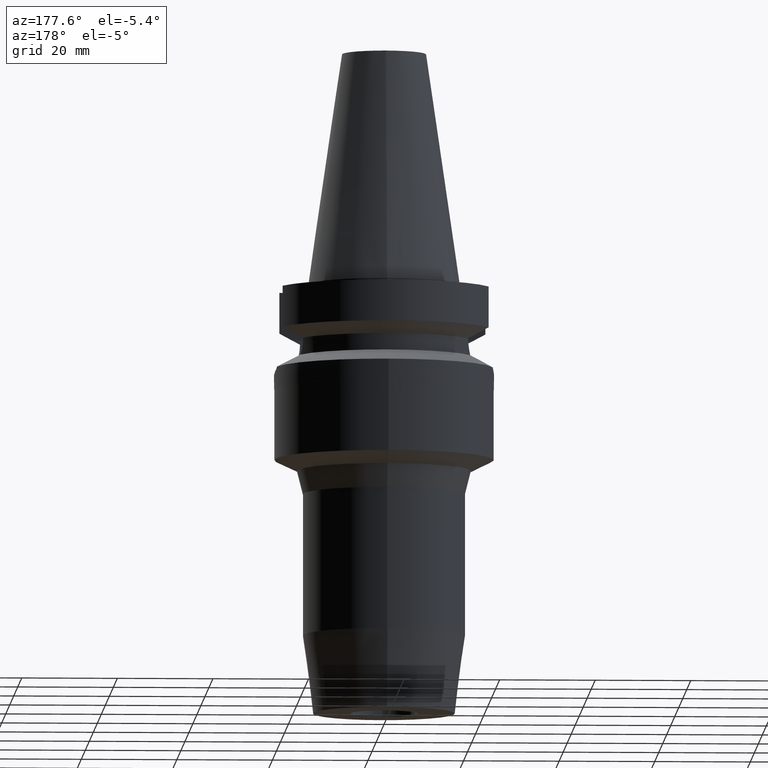
[diagram: clean part render]
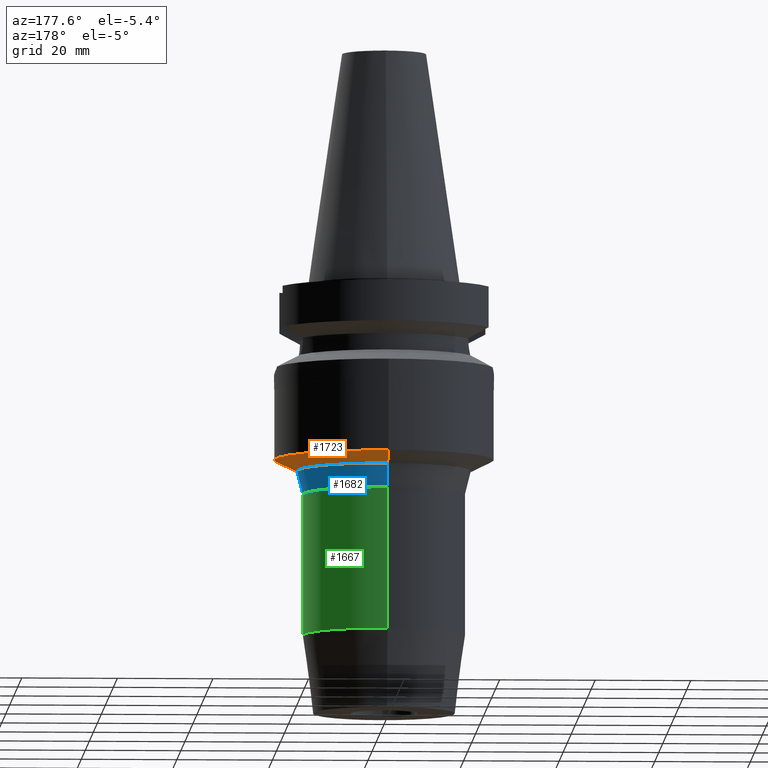
[diagram: same view with three faces highlighted in distinct colors, each labeled with its STEP entity id]
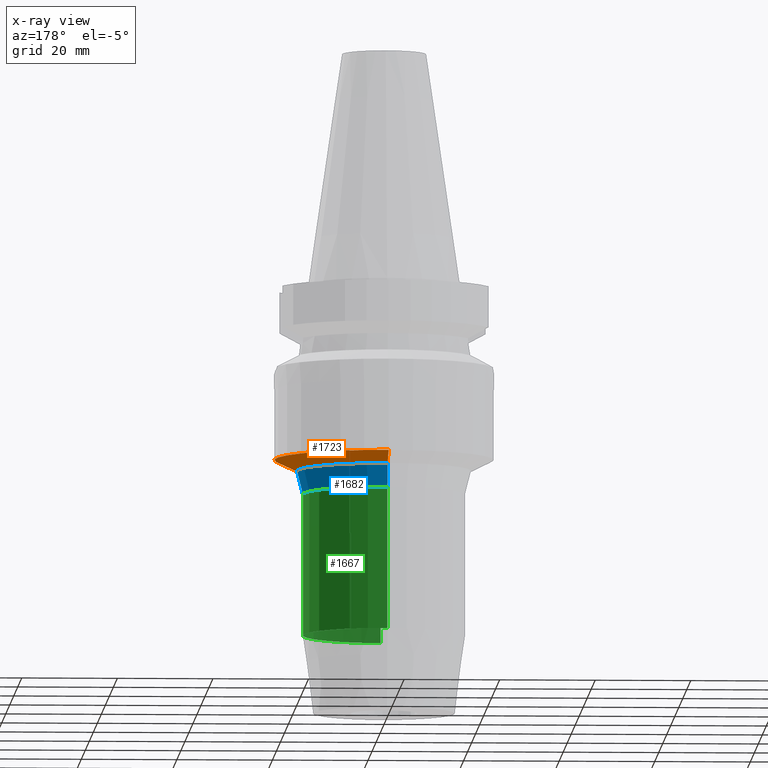
[diagram: x-ray of the same camera — body ghosted, the three highlighted faces saturated]
A machine part, auxiliary view with three faces highlighted in distinct colors.
The next image is the same camera in x-ray (body ghosted, the three faces saturated) — at least one of them is partly hidden behind the body in this view.
Their STEP definitions:

[orange] entity #1723 — the highlighted conical surface has half-angle 64.001 deg.
#445=CARTESIAN_POINT('',(0.E0,0.E0,-3.909757260797E1));
#446=DIRECTION('',(0.E0,0.E0,1.E0));
#447=DIRECTION('',(0.E0,-1.E0,0.E0));
#448=AXIS2_PLACEMENT_3D('',#445,#446,#447);
#476=DIRECTION('',(0.E0,8.988016971821E-1,-4.383554598070E-1));
#477=VECTOR('',#476,5.241345936434E0);
#478=CARTESIAN_POINT('',(0.E0,-2.295E1,-3.68E1));
#479=LINE('',#478,#477);
#491=DIRECTION('',(0.E0,-8.988016971821E-1,-4.383554598070E-1));
#492=VECTOR('',#491,5.241345936434E0);
#493=CARTESIAN_POINT('',(0.E0,2.295E1,-3.68E1));
#494=LINE('',#493,#492);
#498=CARTESIAN_POINT('',(0.E0,0.E0,-3.68E1));
#499=DIRECTION('',(0.E0,0.E0,1.E0));
#500=DIRECTION('',(0.E0,-1.E0,0.E0));
#501=AXIS2_PLACEMENT_3D('',#498,#499,#500);
#1182=CARTESIAN_POINT('',(0.E0,1.823906937682E1,-3.909757260797E1));
#1183=VERTEX_POINT('',#1182);
#1184=CARTESIAN_POINT('',(0.E0,-1.823906937682E1,-3.909757260797E1));
#1185=VERTEX_POINT('',#1184);
#1186=CARTESIAN_POINT('',(0.E0,2.295E1,-3.68E1));
#1187=VERTEX_POINT('',#1186);
#1188=CARTESIAN_POINT('',(0.E0,-2.295E1,-3.68E1));
#1189=VERTEX_POINT('',#1188);
#1711=CARTESIAN_POINT('',(0.E0,0.E0,-3.794878630399E1));
#1712=DIRECTION('',(0.E0,0.E0,1.E0));
#1713=DIRECTION('',(0.E0,1.E0,0.E0));
#1714=AXIS2_PLACEMENT_3D('',#1711,#1712,#1713);
#1715=CONICAL_SURFACE('',#1714,2.059453468841E1,6.4001E1);
#1716=ORIENTED_EDGE('',*,*,#1701,.T.);
#1717=ORIENTED_EDGE('',*,*,#1678,.F.);
#1718=ORIENTED_EDGE('',*,*,#1705,.F.);
#1720=ORIENTED_EDGE('',*,*,#1719,.T.);
#1721=EDGE_LOOP('',(#1716,#1717,#1718,#1720));
#1722=FACE_OUTER_BOUND('',#1721,.F.);
#449=CIRCLE('',#448,1.823906937682E1);
#502=CIRCLE('',#501,2.295E1);
#1678=EDGE_CURVE('',#1185,#1183,#449,.T.);
#1701=EDGE_CURVE('',#1187,#1183,#494,.T.);
#1705=EDGE_CURVE('',#1189,#1185,#479,.T.);
#1719=EDGE_CURVE('',#1189,#1187,#502,.T.);
#1723=ADVANCED_FACE('',(#1722),#1715,.T.);

[blue] entity #1682 — the highlighted conical surface has half-angle 14.226 deg.
#430=DIRECTION('',(0.E0,-2.457472809519E-1,-9.693339331235E-1));
#431=VECTOR('',#430,5.042047147031E0);
#432=CARTESIAN_POINT('',(0.E0,1.823906937682E1,-3.909757260797E1));
#433=LINE('',#432,#431);
#437=CARTESIAN_POINT('',(0.E0,0.E0,-4.3985E1));
#438=DIRECTION('',(0.E0,0.E0,-1.E0));
#439=DIRECTION('',(0.E0,1.E0,0.E0));
#440=AXIS2_PLACEMENT_3D('',#437,#438,#439);
#445=CARTESIAN_POINT('',(0.E0,0.E0,-3.909757260797E1));
#446=DIRECTION('',(0.E0,0.E0,1.E0));
#447=DIRECTION('',(0.E0,-1.E0,0.E0));
#448=AXIS2_PLACEMENT_3D('',#445,#446,#447);
#453=DIRECTION('',(0.E0,2.457472809519E-1,-9.693339331235E-1));
#454=VECTOR('',#453,5.042047147031E0);
#455=CARTESIAN_POINT('',(0.E0,-1.823906937682E1,-3.909757260797E1));
#456=LINE('',#455,#454);
#1178=CARTESIAN_POINT('',(0.E0,1.7E1,-4.3985E1));
#1179=VERTEX_POINT('',#1178);
#1180=CARTESIAN_POINT('',(0.E0,-1.7E1,-4.3985E1));
#1181=VERTEX_POINT('',#1180);
#1182=CARTESIAN_POINT('',(0.E0,1.823906937682E1,-3.909757260797E1));
#1183=VERTEX_POINT('',#1182);
#1184=CARTESIAN_POINT('',(0.E0,-1.823906937682E1,-3.909757260797E1));
#1185=VERTEX_POINT('',#1184);
#1668=CARTESIAN_POINT('',(0.E0,0.E0,-4.154128630399E1));
#1669=DIRECTION('',(0.E0,0.E0,1.E0));
#1670=DIRECTION('',(0.E0,1.E0,0.E0));
#1671=AXIS2_PLACEMENT_3D('',#1668,#1669,#1670);
#1672=CONICAL_SURFACE('',#1671,1.761953468841E1,1.4226E1);
#1674=ORIENTED_EDGE('',*,*,#1673,.T.);
#1675=ORIENTED_EDGE('',*,*,#1663,.T.);
#1677=ORIENTED_EDGE('',*,*,#1676,.F.);
#1679=ORIENTED_EDGE('',*,*,#1678,.T.);
#1680=EDGE_LOOP('',(#1674,#1675,#1677,#1679));
#1681=FACE_OUTER_BOUND('',#1680,.F.);
#441=CIRCLE('',#440,1.7E1);
#449=CIRCLE('',#448,1.823906937682E1);
#1663=EDGE_CURVE('',#1179,#1181,#441,.T.);
#1673=EDGE_CURVE('',#1183,#1179,#433,.T.);
#1676=EDGE_CURVE('',#1185,#1181,#456,.T.);
#1678=EDGE_CURVE('',#1185,#1183,#449,.T.);
#1682=ADVANCED_FACE('',(#1681),#1672,.T.);

[green] entity #1667 — the highlighted cylindrical surface (partial cylindrical patch) has radius 17 mm, axis along (0, 0, -1).
#393=CARTESIAN_POINT('',(0.E0,0.E0,-7.363494776413E1));
#394=DIRECTION('',(0.E0,0.E0,1.E0));
#395=DIRECTION('',(0.E0,-1.E0,0.E0));
#396=AXIS2_PLACEMENT_3D('',#393,#394,#395);
#416=DIRECTION('',(0.E0,4.685037084927E-14,-1.E0));
#417=VECTOR('',#416,2.964994776413E1);
#418=CARTESIAN_POINT('',(0.E0,-1.7E1,-4.3985E1));
#419=LINE('',#418,#417);
#423=DIRECTION('',(0.E0,-4.685037084927E-14,-1.E0));
#424=VECTOR('',#423,2.964994776413E1);
#425=CARTESIAN_POINT('',(0.E0,1.7E1,-4.3985E1));
#426=LINE('',#425,#424);
#437=CARTESIAN_POINT('',(0.E0,0.E0,-4.3985E1));
#438=DIRECTION('',(0.E0,0.E0,-1.E0));
#439=DIRECTION('',(0.E0,1.E0,0.E0));
#440=AXIS2_PLACEMENT_3D('',#437,#438,#439);
#1174=CARTESIAN_POINT('',(0.E0,1.7E1,-7.363494776413E1));
#1175=VERTEX_POINT('',#1174);
#1176=CARTESIAN_POINT('',(0.E0,-1.7E1,-7.363494776413E1));
#1177=VERTEX_POINT('',#1176);
#1178=CARTESIAN_POINT('',(0.E0,1.7E1,-4.3985E1));
#1179=VERTEX_POINT('',#1178);
#1180=CARTESIAN_POINT('',(0.E0,-1.7E1,-4.3985E1));
#1181=VERTEX_POINT('',#1180);
#1655=CARTESIAN_POINT('',(0.E0,1.902121408436E-14,5.532E1));
#1656=DIRECTION('',(0.E0,0.E0,-1.E0));
#1657=DIRECTION('',(0.E0,-1.E0,0.E0));
#1658=AXIS2_PLACEMENT_3D('',#1655,#1656,#1657);
#1659=CYLINDRICAL_SURFACE('',#1658,1.7E1);
#1660=ORIENTED_EDGE('',*,*,#1645,.T.);
#1661=ORIENTED_EDGE('',*,*,#1622,.F.);
#1662=ORIENTED_EDGE('',*,*,#1649,.F.);
#1664=ORIENTED_EDGE('',*,*,#1663,.F.);
#1665=EDGE_LOOP('',(#1660,#1661,#1662,#1664));
#1666=FACE_OUTER_BOUND('',#1665,.F.);
#397=CIRCLE('',#396,1.7E1);
#441=CIRCLE('',#440,1.7E1);
#1622=EDGE_CURVE('',#1177,#1175,#397,.T.);
#1645=EDGE_CURVE('',#1179,#1175,#426,.T.);
#1649=EDGE_CURVE('',#1181,#1177,#419,.T.);
#1663=EDGE_CURVE('',#1179,#1181,#441,.T.);
#1667=ADVANCED_FACE('',(#1666),#1659,.T.);